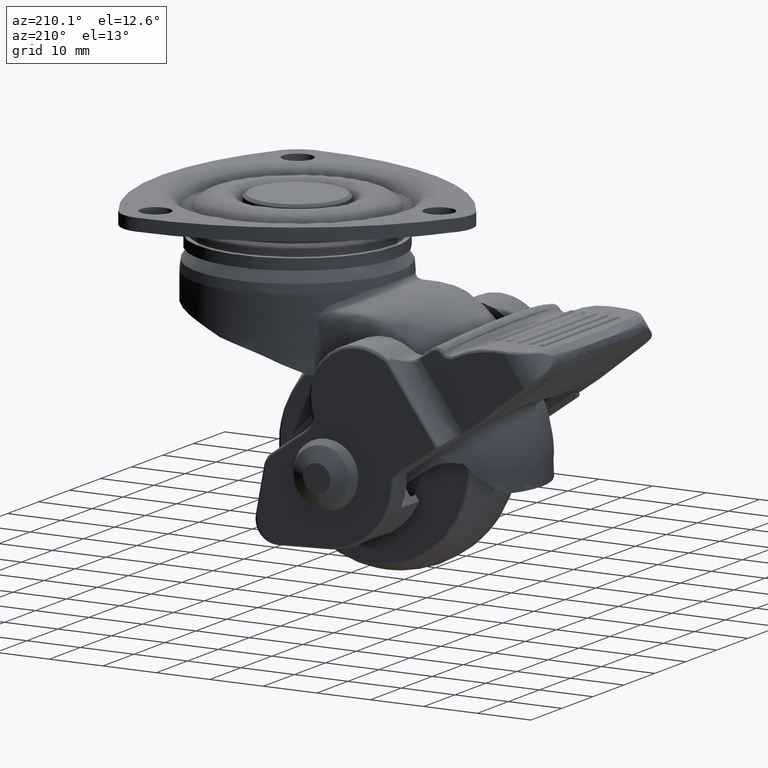
[diagram: clean part render]
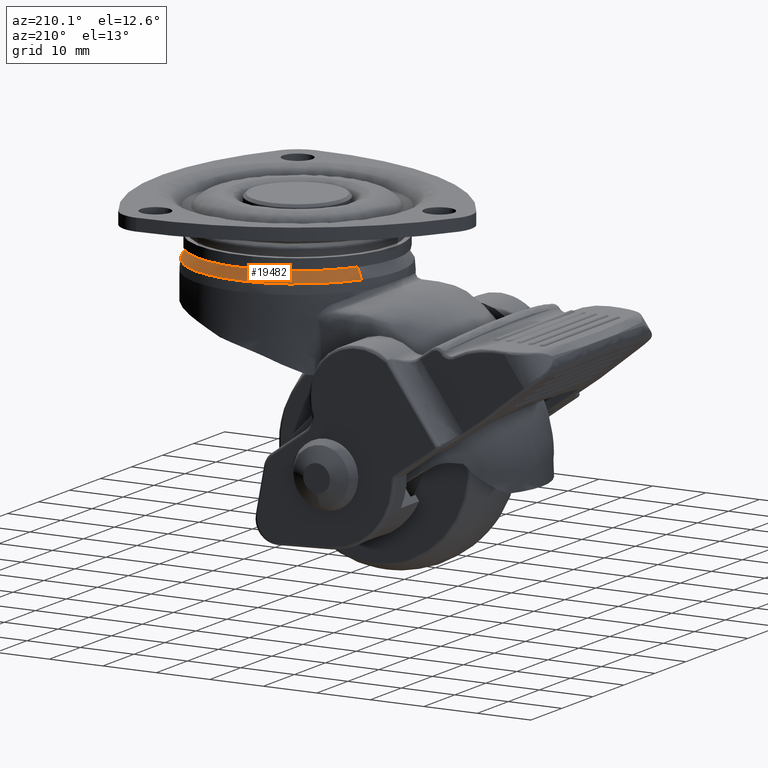
[diagram: same view with one face highlighted and labeled with its STEP entity id]
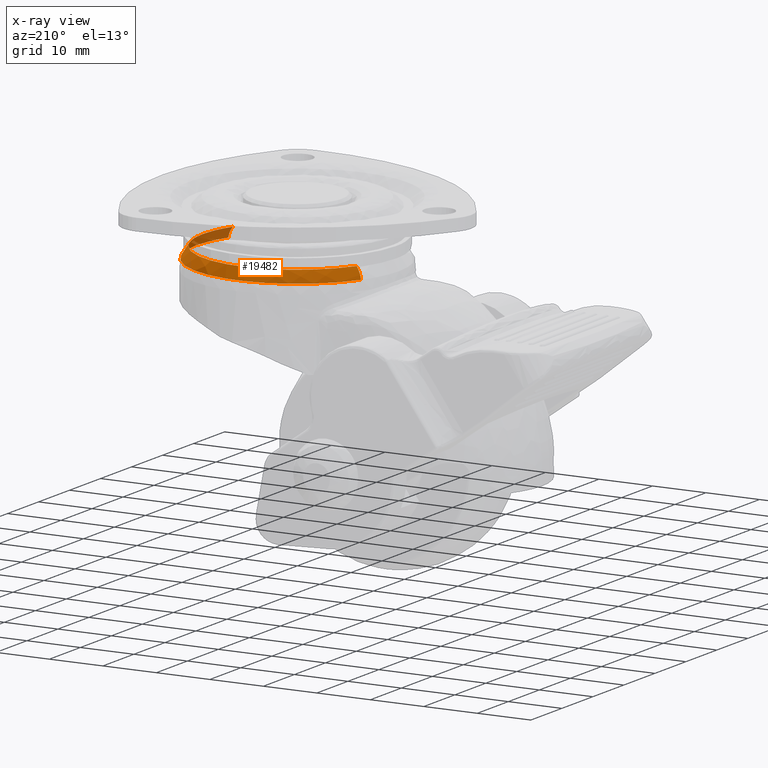
[diagram: x-ray of the same camera — body ghosted, the highlighted face saturated]
A machine part, auxiliary view. The second image highlights one B-rep face of the part: STEP entity #19482.
The next image is the same camera in x-ray: the body ghosted, the highlighted face saturated — about 12% of this face is hidden behind the body in this view.
In plain terms, the highlighted face is a freeform B-spline surface patch.
Its self-contained STEP definition (entity closure, byte-faithful):
#19348=CARTESIAN_POINT('',(-15.649644149104871,7.987199614516657,-8.711191093163455));
#19349=CARTESIAN_POINT('',(-8.106904717961916,22.765994899946900,-8.711191093163459));
#19350=CARTESIAN_POINT('',(7.079086939404506,16.080834797363600,-8.711191093163455));
#19351=CARTESIAN_POINT('',(23.159921736768105,9.001747857959094,-8.711191093163455));
#19352=CARTESIAN_POINT('',(16.080834797363590,-7.079086939404517,-8.711191093163455));
#19353=CARTESIAN_POINT('',(-16.665143622322240,8.505485968106843,-9.560650496747636));
#19354=CARTESIAN_POINT('',(-8.632958690312753,24.243271674287325,-9.560650496747638));
#19355=CARTESIAN_POINT('',(7.538446205936861,17.124314068203901,-9.560650496747639));
#19356=CARTESIAN_POINT('',(24.662760274140766,9.585867862267044,-9.560650496747638));
#19357=CARTESIAN_POINT('',(17.124314068203901,-7.538446205936875,-9.560650496747639));
#19358=CARTESIAN_POINT('',(-16.933030357527194,8.642208874249443,-10.950249268622924));
#19359=CARTESIAN_POINT('',(-8.771730678788712,24.632974340324509,-10.950249268622926));
#19360=CARTESIAN_POINT('',(7.659624264067821,17.399581818204613,-10.950249268622926));
#19361=CARTESIAN_POINT('',(25.059206082272436,9.739957554136796,-10.950249268622924));
#19362=CARTESIAN_POINT('',(17.399581818204613,-7.659624264067835,-10.950249268622926));
#19370=(BOUNDED_SURFACE()B_SPLINE_SURFACE(2,2,((#19348,#19353,#19358),(#19349,#19354,#19359),(#19350,#19355,#19360),(#19351,#19356,#19361),(#19352,#19357,#19362)),.UNSPECIFIED.,.F.,.F.,.U.)B_SPLINE_SURFACE_WITH_KNOTS((3,2,3),(3,3),(0.0,30.238399516747059,61.736732346691923),(0.0,2.750106741766511),.UNSPECIFIED.)GEOMETRIC_REPRESENTATION_ITEM()RATIONAL_B_SPLINE_SURFACE(((0.915816631263356,0.857537240173376,0.915805028244481),(0.673458519625355,0.630601957396318,0.673449987183764),(0.936891249666660,0.877270743023555,0.936879379641065),(0.662482155873634,0.620324091328517,0.662473762498043),(0.936891249666660,0.877270743023555,0.936879379641065)))REPRESENTATION_ITEM('')SURFACE());
#19371=CARTESIAN_POINT('',(-15.735206224410520,8.030868427102966,-8.785180318679844));
#19372=VERTEX_POINT('',#19371);
#19373=CARTESIAN_POINT('',(17.054541533922841,4.608055637223613,-8.785180278773627));
#19374=VERTEX_POINT('',#19373);
#19375=CARTESIAN_POINT('',(-15.735206224410515,8.030868427102966,-8.785180318679844));
#19376=CARTESIAN_POINT('',(-10.817610386326077,17.666113397868997,-8.785180317963400));
#19377=CARTESIAN_POINT('',(0.0,17.666113397869001,-8.785180317963400));
#19378=CARTESIAN_POINT('',(13.526316684974685,17.666113397869008,-8.785180317963400));
#19379=CARTESIAN_POINT('',(17.054541533922837,4.608055637223613,-8.785180278773627));
#19387=(BOUNDED_CURVE()B_SPLINE_CURVE(2,(#19375,#19376,#19377,#19378,#19379),.UNSPECIFIED.,.F.,.U.)B_SPLINE_CURVE_WITH_KNOTS((3,2,3),(0.077307643276724,0.250000000000000,0.455522207668931),.UNSPECIFIED.)CURVE()GEOMETRIC_REPRESENTATION_ITEM()RATIONAL_B_SPLINE_CURVE((0.874871901326286,0.797678319099355,1.0,0.759215756232800,0.914323587273032))REPRESENTATION_ITEM(''));
#19388=EDGE_CURVE('',#19372,#19374,#19387,.T.);
#19389=ORIENTED_EDGE('',*,*,#19388,.T.);
#19390=CARTESIAN_POINT('',(17.666113397869001,0.0,-8.785180317963400));
#19391=VERTEX_POINT('',#19390);
#19392=CARTESIAN_POINT('',(17.054541533922841,4.608055637223613,-8.785180278773627));
#19393=CARTESIAN_POINT('',(17.666113397869001,2.344611111730646,-8.785180317963400));
#19394=CARTESIAN_POINT('',(17.666113397869001,0.0,-8.785180317963400));
#19402=(BOUNDED_CURVE()B_SPLINE_CURVE(2,(#19392,#19393,#19394),.UNSPECIFIED.,.F.,.U.)B_SPLINE_CURVE_WITH_KNOTS((3,3),(0.455522207668931,0.500000000000000),.UNSPECIFIED.)CURVE()GEOMETRIC_REPRESENTATION_ITEM()RATIONAL_B_SPLINE_CURVE((0.914323587273032,0.947891024953748,1.0))REPRESENTATION_ITEM(''));
#19403=EDGE_CURVE('',#19374,#19391,#19402,.T.);
#19404=ORIENTED_EDGE('',*,*,#19403,.T.);
#19405=CARTESIAN_POINT('',(16.168754342576172,-7.117790782502139,-8.785180318587056));
#19406=VERTEX_POINT('',#19405);
#19407=CARTESIAN_POINT('',(17.666113397869001,0.0,-8.785180317963400));
#19408=CARTESIAN_POINT('',(17.666113397869001,-3.716393989488699,-8.785180317963400));
#19409=CARTESIAN_POINT('',(16.168754342576172,-7.117790782502139,-8.785180318587056));
#19417=(BOUNDED_CURVE()B_SPLINE_CURVE(2,(#19407,#19408,#19409),.UNSPECIFIED.,.F.,.U.)B_SPLINE_CURVE_WITH_KNOTS((3,3),(0.500000000000000,0.568414990141208),.UNSPECIFIED.)CURVE()GEOMETRIC_REPRESENTATION_ITEM()RATIONAL_B_SPLINE_CURVE((1.0,0.919846853289804,0.883563120515327))REPRESENTATION_ITEM(''));
#19418=EDGE_CURVE('',#19391,#19406,#19417,.T.);
#19419=ORIENTED_EDGE('',*,*,#19418,.T.);
#19420=CARTESIAN_POINT('',(17.374375769210069,-7.648528085643813,-10.832165184497020));
#19421=VERTEX_POINT('',#19420);
#19422=CARTESIAN_POINT('',(16.168754342576179,-7.117790782502139,-8.785180318587056));
#19423=CARTESIAN_POINT('',(17.088956528720573,-7.522881149823795,-9.585510629923681));
#19424=CARTESIAN_POINT('',(17.374375769210069,-7.648528085643813,-10.832165184497017));
#19432=(BOUNDED_CURVE()B_SPLINE_CURVE(2,(#19422,#19423,#19424),.UNSPECIFIED.,.F.,.U.)B_SPLINE_CURVE_WITH_KNOTS((3,3),(-1.514986752922686,-0.485125535807060),.UNSPECIFIED.)CURVE()GEOMETRIC_REPRESENTATION_ITEM()RATIONAL_B_SPLINE_CURVE((0.931721990566315,0.882439439938435,0.931711244901543))REPRESENTATION_ITEM(''));
#19433=EDGE_CURVE('',#19406,#19421,#19432,.T.);
#19434=ORIENTED_EDGE('',*,*,#19433,.T.);
#19435=CARTESIAN_POINT('',(18.983385687776401,0.0,-10.832165072992099));
#19436=VERTEX_POINT('',#19435);
#19437=CARTESIAN_POINT('',(18.983385687776401,0.0,-10.832165072992099));
#19438=CARTESIAN_POINT('',(18.983385687776405,-3.993506600939346,-10.832165072992099));
#19439=CARTESIAN_POINT('',(17.374375769210069,-7.648528085643814,-10.832165184497017));
#19447=(BOUNDED_CURVE()B_SPLINE_CURVE(2,(#19437,#19438,#19439),.UNSPECIFIED.,.F.,.U.)B_SPLINE_CURVE_WITH_KNOTS((3,3),(0.500000000000000,0.568414990138652),.UNSPECIFIED.)CURVE()GEOMETRIC_REPRESENTATION_ITEM()RATIONAL_B_SPLINE_CURVE((1.0,0.919846853292798,0.883563120518038))REPRESENTATION_ITEM(''));
#19448=EDGE_CURVE('',#19436,#19421,#19447,.T.);
#19449=ORIENTED_EDGE('',*,*,#19448,.F.);
#19450=CARTESIAN_POINT('',(-16.908500182176621,8.629689266452811,-10.832165184455061));
#19451=VERTEX_POINT('',#19450);
#19452=CARTESIAN_POINT('',(-16.908500182176628,8.629689266452811,-10.832165184455059));
#19453=CARTESIAN_POINT('',(-11.624224613656043,18.983385687776405,-10.832165072992099));
#19454=CARTESIAN_POINT('',(0.0,18.983385687776401,-10.832165072992099));
#19455=CARTESIAN_POINT('',(18.983385687776405,18.983385687776405,-10.832165072992101));
#19456=CARTESIAN_POINT('',(18.983385687776401,0.0,-10.832165072992099));
#19464=(BOUNDED_CURVE()B_SPLINE_CURVE(2,(#19452,#19453,#19454,#19455,#19456),.UNSPECIFIED.,.F.,.U.)B_SPLINE_CURVE_WITH_KNOTS((3,2,3),(0.077307643274427,0.250000000000000,0.500000000000000),.UNSPECIFIED.)CURVE()GEOMETRIC_REPRESENTATION_ITEM()RATIONAL_B_SPLINE_CURVE((0.874871901328339,0.797678319096664,1.0,0.707106781186548,1.0))REPRESENTATION_ITEM(''));
#19465=EDGE_CURVE('',#19451,#19436,#19464,.T.);
#19466=ORIENTED_EDGE('',*,*,#19465,.F.);
#19467=CARTESIAN_POINT('',(-15.735206224410517,8.030868427102966,-8.785180318679844));
#19468=CARTESIAN_POINT('',(-16.630734158022801,8.487924210320557,-9.585510630054781));
#19469=CARTESIAN_POINT('',(-16.908500182176621,8.629689266452811,-10.832165184455059));
#19477=(BOUNDED_CURVE()B_SPLINE_CURVE(2,(#19467,#19468,#19469),.UNSPECIFIED.,.F.,.U.)B_SPLINE_CURVE_WITH_KNOTS((3,3),(-1.514986752796619,-0.485125535843655),.UNSPECIFIED.)CURVE()GEOMETRIC_REPRESENTATION_ITEM()RATIONAL_B_SPLINE_CURVE((0.910763650495161,0.862589671397831,0.910753146553885))REPRESENTATION_ITEM(''));
#19478=EDGE_CURVE('',#19372,#19451,#19477,.T.);
#19479=ORIENTED_EDGE('',*,*,#19478,.F.);
#19480=EDGE_LOOP('',(#19389,#19404,#19419,#19434,#19449,#19466,#19479));
#19481=FACE_OUTER_BOUND('',#19480,.T.);
#19482=ADVANCED_FACE('',(#19481),#19370,.T.);